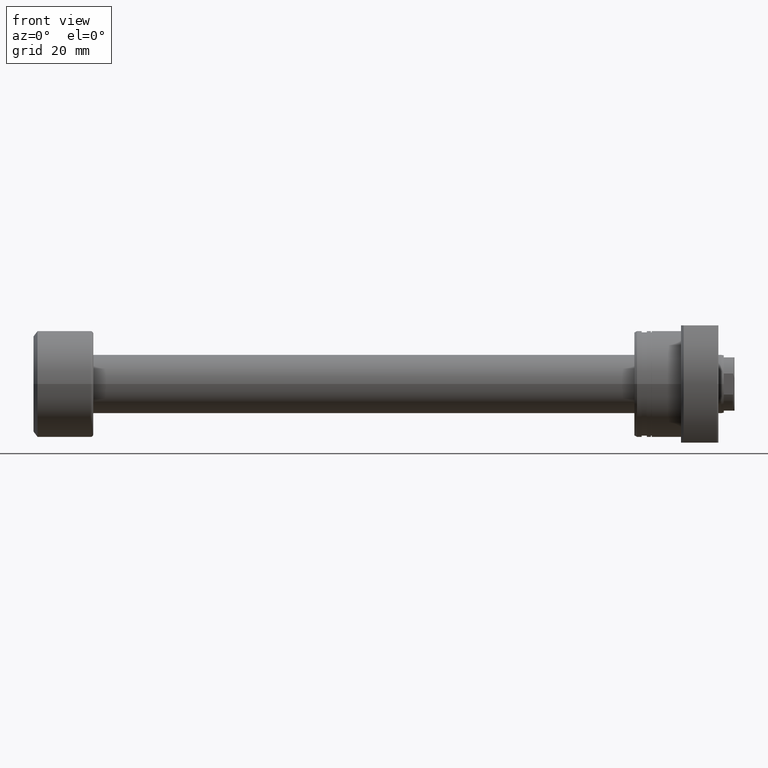
[diagram: clean part render]
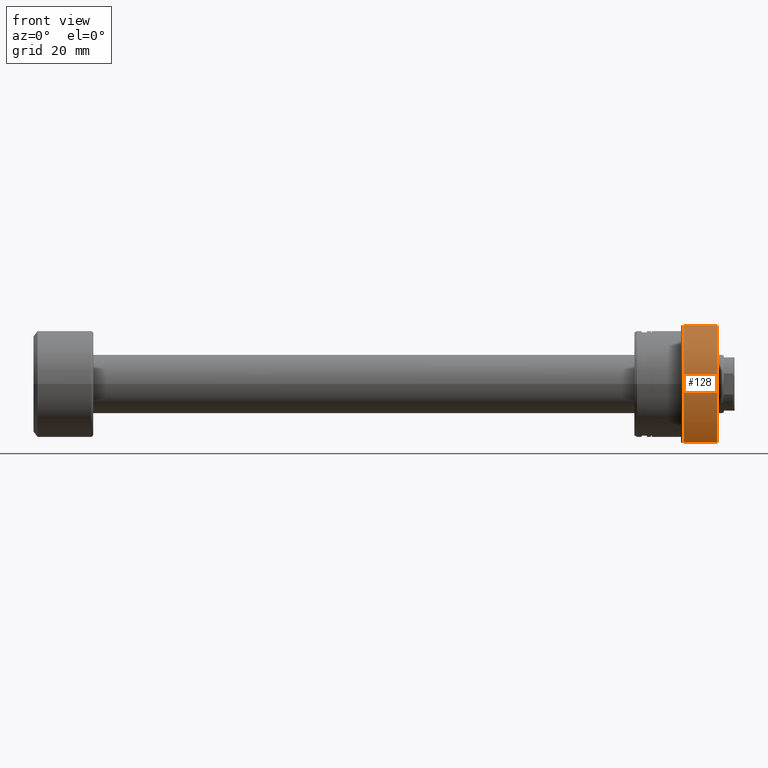
[diagram: same view with one face highlighted and labeled with its STEP entity id]
A machine part, front view. The second image highlights one B-rep face of the part: STEP entity #128.
In plain terms, the highlighted cylindrical surface (partial cylindrical patch) has radius 32.5 mm, axis along (1, 0, 0).
Its self-contained STEP definition (entity closure, byte-faithful):
#112 = DIRECTION ( 'NONE',  ( 1.000000000000000000, -2.886466111666351885E-14, -0.000000000000000000 ) ) ;
#128 = ADVANCED_FACE ( 'NONE', ( #1151 ), #454, .T. ) ;
#298 = DIRECTION ( 'NONE',  ( 0.000000000000000000, 1.000000000000000000, 0.000000000000000000 ) ) ;
#357 = LINE ( 'NONE', #1129, #2603 ) ;
#444 = CARTESIAN_POINT ( 'NONE',  ( 31.00000000000007461, -23.92174742781125829, -22.00000000000000355 ) ) ;
#454 = CYLINDRICAL_SURFACE ( 'NONE', #2704, 32.49999999999990763 ) ;
#596 = VERTEX_POINT ( 'NONE', #444 ) ;
#616 = CARTESIAN_POINT ( 'NONE',  ( -1.637578961322105897E-12, -23.92174742781036301, -22.00000000000000355 ) ) ;
#730 = CARTESIAN_POINT ( 'NONE',  ( 18.49999999999998934, 5.034659063161333869E-16, 0.000000000000000000 ) ) ;
#783 = CARTESIAN_POINT ( 'NONE',  ( 31.00000000000008171, 8.436455727459560039E-16, 0.000000000000000000 ) ) ;
#951 = CIRCLE ( 'NONE', #1611, 32.49999999999990763 ) ;
#983 = CARTESIAN_POINT ( 'NONE',  ( 31.00000000000008171, -32.49999999999990763, 0.000000000000000000 ) ) ;
#995 = EDGE_CURVE ( 'NONE', #2793, #3029, #951, .T. ) ;
#1025 = DIRECTION ( 'NONE',  ( 1.000000000000000000, 2.721437331438560389E-17, -0.000000000000000000 ) ) ;
#1031 = VERTEX_POINT ( 'NONE', #1892 ) ;
#1100 = DIRECTION ( 'NONE',  ( 1.000000000000000000, -2.886466111666351885E-14, -0.000000000000000000 ) ) ;
#1111 = ORIENTED_EDGE ( 'NONE', *, *, #2864, .F. ) ;
#1129 = CARTESIAN_POINT ( 'NONE',  ( -1.637578961322105897E-12, -23.92174742781035945, 22.00000000000001066 ) ) ;
#1151 = FACE_OUTER_BOUND ( 'NONE', #1442, .T. ) ;
#1181 = CARTESIAN_POINT ( 'NONE',  ( 31.50000000000000000, 8.572527594031465301E-16, 0.000000000000000000 ) ) ;
#1284 = CARTESIAN_POINT ( 'NONE',  ( 18.49999999999998934, -23.92174742781089591, 22.00000000000001066 ) ) ;
#1308 = LINE ( 'NONE', #616, #2656 ) ;
#1309 = ORIENTED_EDGE ( 'NONE', *, *, #2350, .F. ) ;
#1369 = CIRCLE ( 'NONE', #1563, 32.49999999999990763 ) ;
#1407 = DIRECTION ( 'NONE',  ( 0.000000000000000000, 1.000000000000000000, 0.000000000000000000 ) ) ;
#1437 = DIRECTION ( 'NONE',  ( 1.000000000000000000, 2.721437331438560389E-17, -0.000000000000000000 ) ) ;
#1442 = EDGE_LOOP ( 'NONE', ( #1799, #2349, #2006, #1309, #1111 ) ) ;
#1563 = AXIS2_PLACEMENT_3D ( 'NONE', #783, #1779, #2020 ) ;
#1564 = CARTESIAN_POINT ( 'NONE',  ( 18.49999999999998934, -23.92174742781089947, -22.00000000000000355 ) ) ;
#1609 = CIRCLE ( 'NONE', #2341, 32.49999999999990763 ) ;
#1611 = AXIS2_PLACEMENT_3D ( 'NONE', #730, #1025, #298 ) ;
#1779 = DIRECTION ( 'NONE',  ( 1.000000000000000000, 2.721437331438560389E-17, -0.000000000000000000 ) ) ;
#1799 = ORIENTED_EDGE ( 'NONE', *, *, #2627, .F. ) ;
#1892 = CARTESIAN_POINT ( 'NONE',  ( 31.00000000000007461, -23.92174742781125474, 22.00000000000001066 ) ) ;
#2006 = ORIENTED_EDGE ( 'NONE', *, *, #2157, .T. ) ;
#2020 = DIRECTION ( 'NONE',  ( 0.000000000000000000, 1.000000000000000000, 0.000000000000000000 ) ) ;
#2157 = EDGE_CURVE ( 'NONE', #3029, #596, #1308, .T. ) ;
#2341 = AXIS2_PLACEMENT_3D ( 'NONE', #2958, #2941, #2701 ) ;
#2349 = ORIENTED_EDGE ( 'NONE', *, *, #995, .T. ) ;
#2350 = EDGE_CURVE ( 'NONE', #2830, #596, #1609, .T. ) ;
#2603 = VECTOR ( 'NONE', #112, 1000.000000000000000 ) ;
#2627 = EDGE_CURVE ( 'NONE', #2793, #1031, #357, .T. ) ;
#2656 = VECTOR ( 'NONE', #1100, 1000.000000000000000 ) ;
#2701 = DIRECTION ( 'NONE',  ( 0.000000000000000000, 1.000000000000000000, 0.000000000000000000 ) ) ;
#2704 = AXIS2_PLACEMENT_3D ( 'NONE', #1181, #1437, #1407 ) ;
#2793 = VERTEX_POINT ( 'NONE', #1284 ) ;
#2830 = VERTEX_POINT ( 'NONE', #983 ) ;
#2864 = EDGE_CURVE ( 'NONE', #1031, #2830, #1369, .T. ) ;
#2941 = DIRECTION ( 'NONE',  ( 1.000000000000000000, 2.721437331438560389E-17, -0.000000000000000000 ) ) ;
#2958 = CARTESIAN_POINT ( 'NONE',  ( 31.00000000000008171, 8.436455727459560039E-16, 0.000000000000000000 ) ) ;
#3029 = VERTEX_POINT ( 'NONE', #1564 ) ;